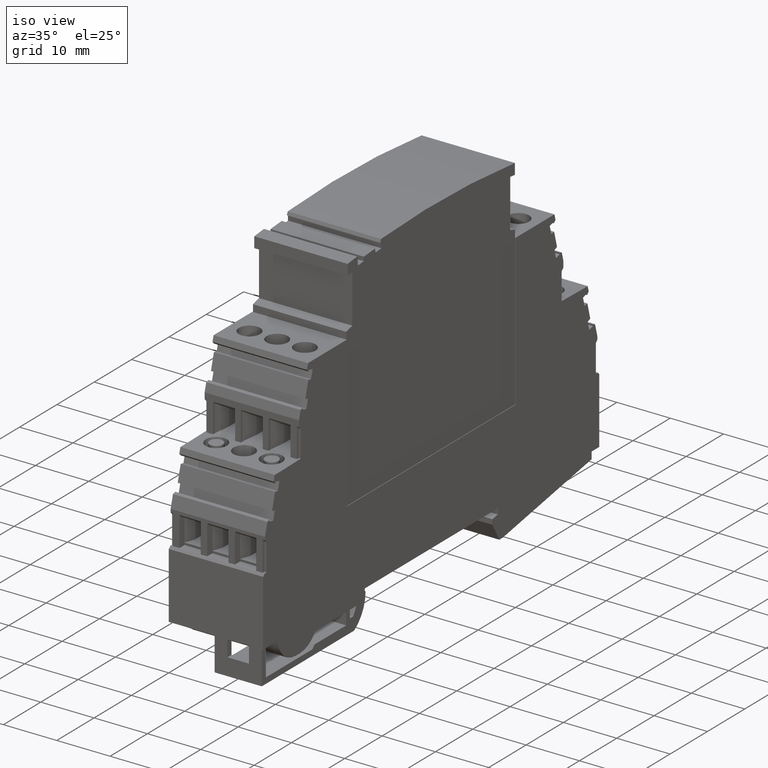
[diagram: clean part render]
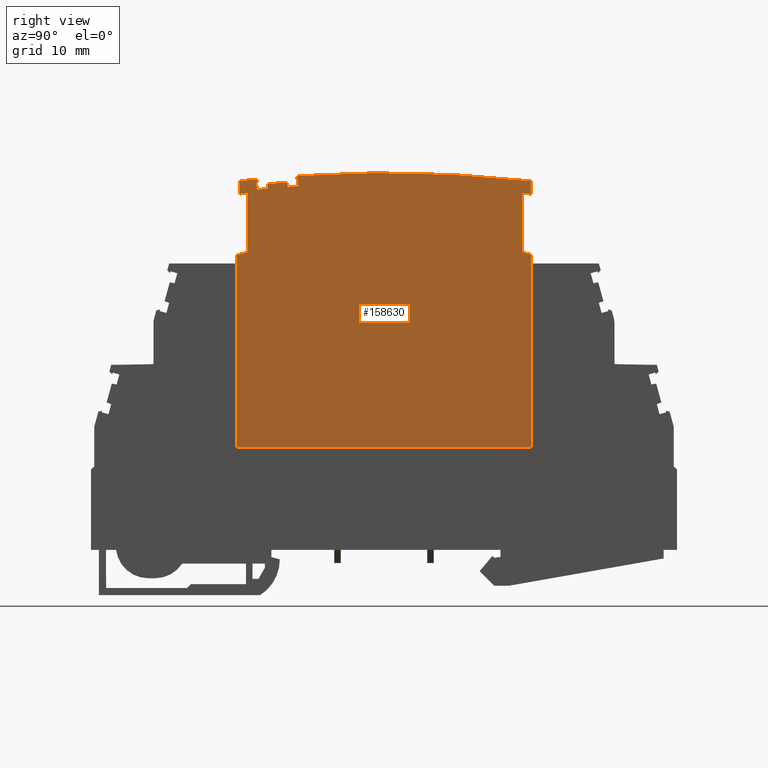
[diagram: tour spotlight — one face highlighted and labeled with its STEP entity id]
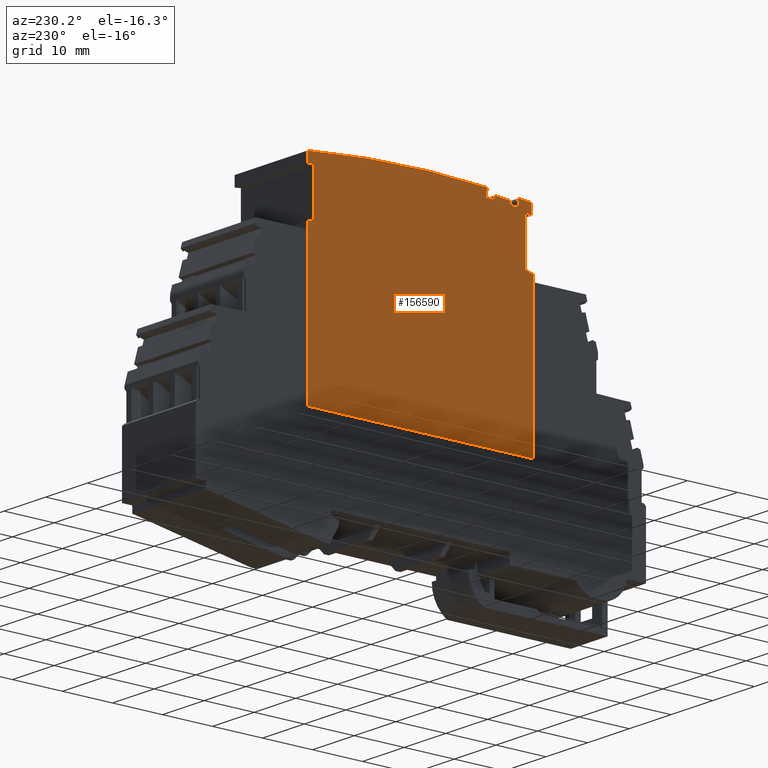
[diagram: tour spotlight — one face highlighted and labeled with its STEP entity id]
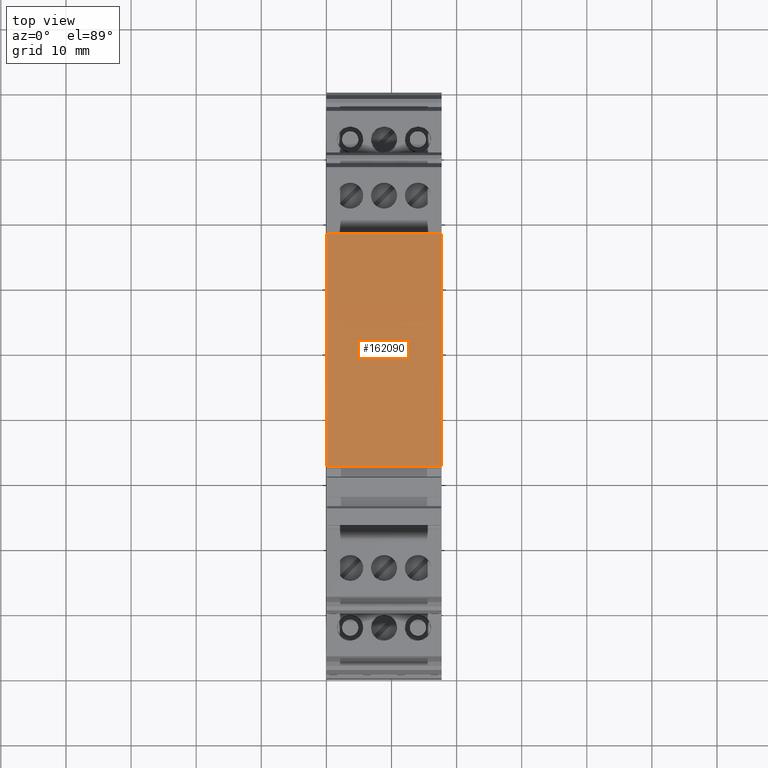
[diagram: tour spotlight — one face highlighted and labeled with its STEP entity id]
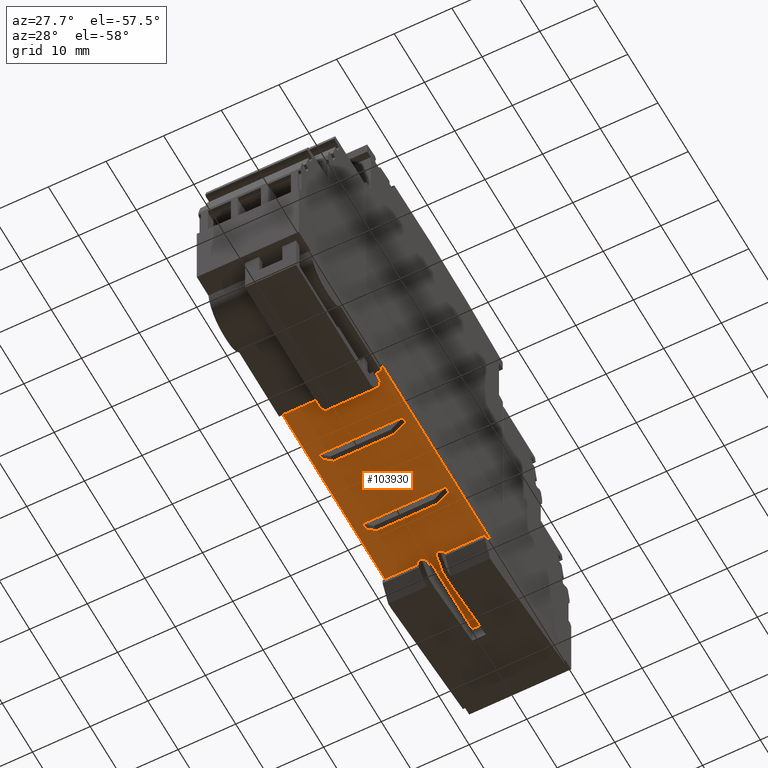
[diagram: tour spotlight — one face highlighted and labeled with its STEP entity id]
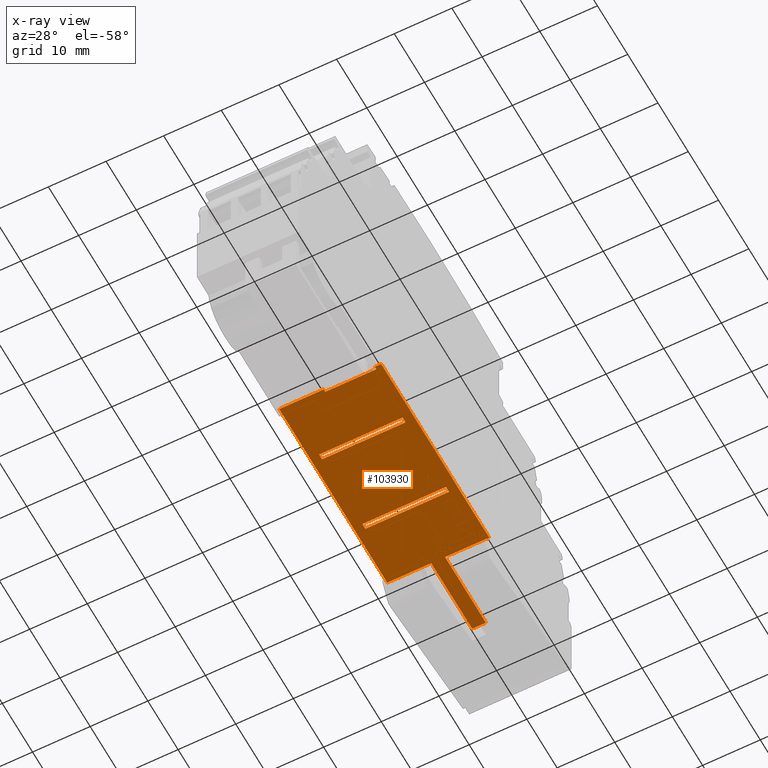
[diagram: x-ray of the same camera — body ghosted, this tour face saturated]
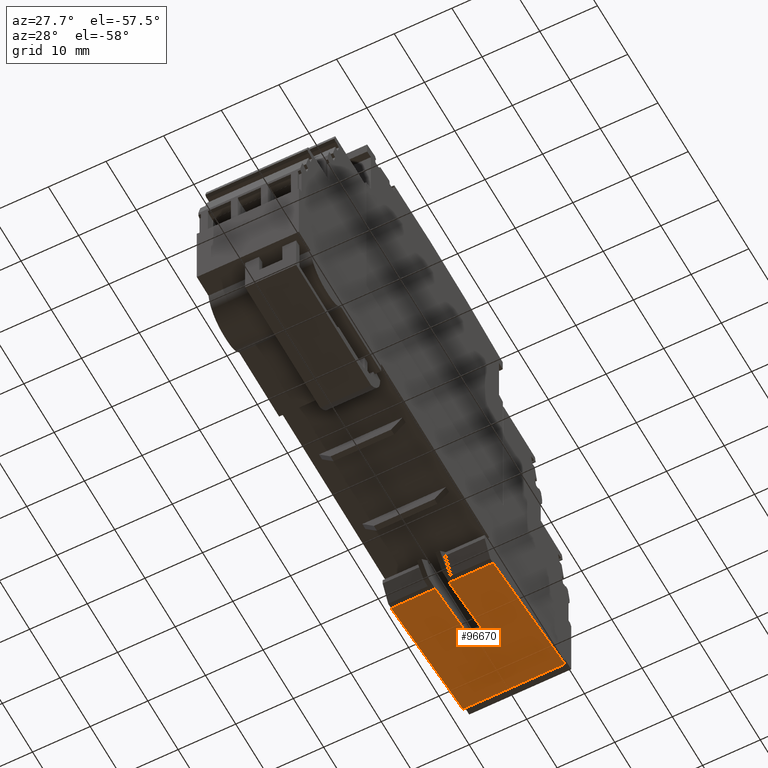
[diagram: tour spotlight — one face highlighted and labeled with its STEP entity id]
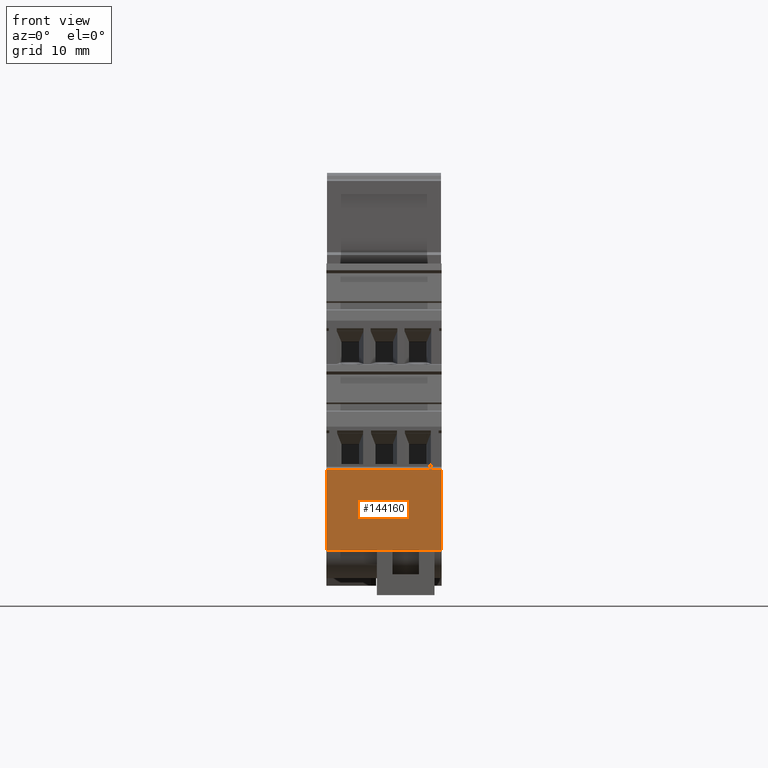
[diagram: tour spotlight — one face highlighted and labeled with its STEP entity id]
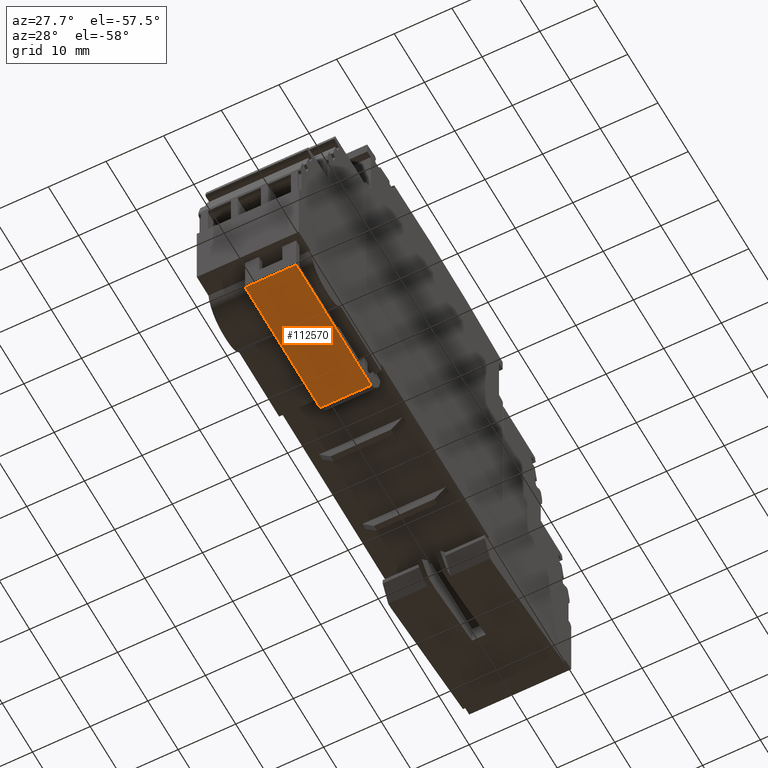
[diagram: tour spotlight — one face highlighted and labeled with its STEP entity id]
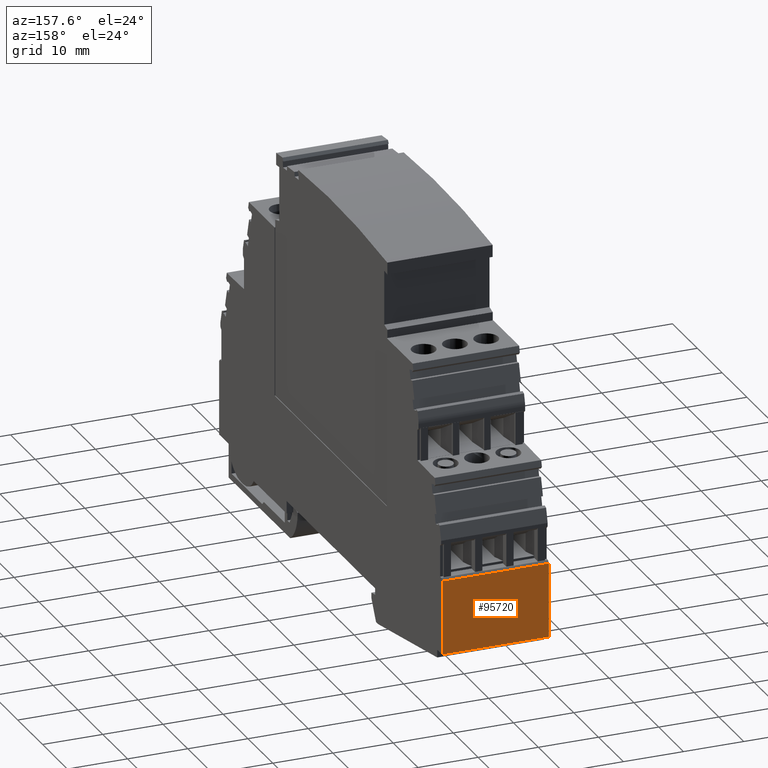
[diagram: tour spotlight — one face highlighted and labeled with its STEP entity id]
A machine part: a face-by-face anatomy tour. The part has 454 B-rep faces; the first image is the clean iso view, then the 8 largest visible faces are spotlighted one at a time (largest first), each with its STEP entity span.

Face 1 — right view, entity #158630. In plain terms, the highlighted planar face has unit normal (1, -0, 0).
Definition (entity closure, byte-faithful):
#24470=CARTESIAN_POINT('',(91.941351313916,59.0562740524438,
-49.3595517602489));
#24480=VERTEX_POINT('',#24470);
#39840=CARTESIAN_POINT('',(46.7413513139147,59.0562740524438,
-49.3595517602489));
#39850=VERTEX_POINT('',#39840);
#114750=CARTESIAN_POINT('',(129.782702627831,30.7879289771841,
-49.3595517602489));
#114760=DIRECTION('',(-1.,3.95149615359835E-16,-2.44929359829471E-16));
#114770=VECTOR('',#114760,1.);
#114780=LINE('',#114750,#114770);
#114790=CARTESIAN_POINT('',(91.9413513139153,30.7879289771841,
-49.3595517602489));
#114800=VERTEX_POINT('',#114790);
#114810=CARTESIAN_POINT('',(46.7413513139147,30.7879289771841,
-49.3595517602489));
#114820=VERTEX_POINT('',#114810);
#114830=EDGE_CURVE('',#114800,#114820,#114780,.T.);
#154090=CARTESIAN_POINT('',(91.9413513139153,-15.7,-49.3595517602489));
#154100=DIRECTION('',(-1.22315418291217E-33,-1.,-2.77555756156286E-17));
#154110=VECTOR('',#154100,1.);
#154120=LINE('',#154090,#154110);
#154130=EDGE_CURVE('',#24480,#114800,#154120,.T.);
#154470=CARTESIAN_POINT('',(46.7413513139153,-15.7,-49.3595517602489));
#154480=DIRECTION('',(1.22315418291217E-33,1.,2.77555756156286E-17));
#154490=VECTOR('',#154480,1.);
#154500=LINE('',#154470,#154490);
#154510=EDGE_CURVE('',#114820,#39850,#154500,.T.);
#156670=CARTESIAN_POINT('',(87.3246870342091,44.7629289771836,
-49.3595517602489));
#156680=DIRECTION('',(2.44929359829471E-16,2.77555756156286E-17,-1.));
#156690=DIRECTION('',(-1.,3.95149615359835E-16,-2.44929359829471E-16));
#156700=AXIS2_PLACEMENT_3D('',#156670,#156680,#156690);
#156710=PLANE('',#156700);
#156720=CARTESIAN_POINT('',(28.1055349542082,-15.7,-49.359551760249));
#156730=DIRECTION('',(0.570304385120161,0.821433447281467,
1.25353295208968E-16));
#156740=VECTOR('',#156730,1.);
#156750=LINE('',#156720,#156740);
#156760=CARTESIAN_POINT('',(88.6446068316195,71.4969772720664,
-49.3595517602489));
#156770=VERTEX_POINT('',#156760);
#156780=CARTESIAN_POINT('',(88.996123659241,72.0032817772118,
-49.3595517602489));
#156790=VERTEX_POINT('',#156780);
#156800=EDGE_CURVE('',#156770,#156790,#156750,.T.);
#156810=ORIENTED_EDGE('',*,*,#156800,.T.);
#156820=CARTESIAN_POINT('',(129.782702627831,68.0631542734316,
-49.3595517602489));
#156830=DIRECTION('',(-0.996534425423477,0.0831813617699367,
-2.46940359703831E-16));
#156840=VECTOR('',#156830,1.);
#156850=LINE('',#156820,#156840);
#156860=CARTESIAN_POINT('',(88.9159707503849,71.4743263533206,
-49.3595517602489));
#156870=VERTEX_POINT('',#156860);
#156880=EDGE_CURVE('',#156870,#156770,#156850,.T.);
#156890=ORIENTED_EDGE('',*,*,#156880,.T.);
#156900=CARTESIAN_POINT('',(81.6394743325323,-15.7,-49.359551760249));
#156910=DIRECTION('',(0.0831813617632678,0.996534425424033,
4.48812483627465E-17));
#156920=VECTOR('',#156910,1.);
#156930=LINE('',#156900,#156920);
#156940=CARTESIAN_POINT('',(88.8269666932981,70.4080345181164,
-49.359551760249));
#156950=VERTEX_POINT('',#156940);
#156960=EDGE_CURVE('',#156950,#156870,#156930,.T.);
#156970=ORIENTED_EDGE('',*,*,#156960,.T.);
#156980=CARTESIAN_POINT('',(129.782702627831,66.9894332132979,
-49.3595517602489));
#156990=DIRECTION('',(0.996534425424034,-0.0831813617632646,
2.46940359703899E-16));
#157000=VECTOR('',#156990,1.);
#157010=LINE('',#156980,#157000);
#157020=CARTESIAN_POINT('',(87.2356173098092,70.5408654624196,
-49.3595517602489));
#157030=VERTEX_POINT('',#157020);
#157040=EDGE_CURVE('',#157030,#156950,#157010,.T.);
#157050=ORIENTED_EDGE('',*,*,#157040,.T.);
#157060=CARTESIAN_POINT('',(87.5796233416669,-15.7,-49.3595517602489));
#157070=DIRECTION('',(0.003988866452728,-0.999992044440566,
-2.68333994932788E-17));
#157080=VECTOR('',#157070,1.);
#157090=LINE('',#157060,#157080);
#157100=CARTESIAN_POINT('',(87.2326142323533,71.2937243511158,
-49.3595517602489));
#157110=VERTEX_POINT('',#157100);
#157120=EDGE_CURVE('',#157110,#157030,#157090,.T.);
#157130=ORIENTED_EDGE('',*,*,#157120,.T.);
#157140=CARTESIAN_POINT('',(129.782702627831,67.7420414332121,
-49.3595517602489));
#157150=DIRECTION('',(0.996534425424037,-0.0831813617632297,
2.46940359703899E-16));
#157160=VECTOR('',#157150,1.);
#157170=LINE('',#157140,#157160);
#157180=CARTESIAN_POINT('',(84.2430109560811,71.5432684364055,
-49.3595517602489));
#157190=VERTEX_POINT('',#157180);
#157200=EDGE_CURVE('',#157190,#157110,#157170,.T.);
#157210=ORIENTED_EDGE('',*,*,#157200,.T.);
#157220=CARTESIAN_POINT('',(69.2182410383657,-15.7,-49.3595517602489));
#157230=DIRECTION('',(0.169718529589978,0.985492577706101,
6.24178888252795E-17));
#157240=VECTOR('',#157230,1.);
#157250=LINE('',#157220,#157240);
#157260=CARTESIAN_POINT('',(84.1152358359803,70.8013256869659,
-49.3595517602489));
#157270=VERTEX_POINT('',#157260);
#157280=EDGE_CURVE('',#157270,#157190,#157250,.T.);
#157290=ORIENTED_EDGE('',*,*,#157280,.T.);
#157300=CARTESIAN_POINT('',(129.782702627831,66.9894332132977,
-49.3595517602489));
#157310=DIRECTION('',(0.996534425424033,-0.0831813617632702,
2.46940359703899E-16));
#157320=VECTOR('',#157310,1.);
#157330=LINE('',#157300,#157320);
#157340=CARTESIAN_POINT('',(82.5238864524912,70.9341566312691,
-49.3595517602489));
#157350=VERTEX_POINT('',#157340);
#157360=EDGE_CURVE('',#157350,#157270,#157330,.T.);
#157370=ORIENTED_EDGE('',*,*,#157360,.T.);
#157380=CARTESIAN_POINT('',(75.2924783446016,-15.7,-49.3595517602489));
#157390=DIRECTION('',(-0.0831813617632822,-0.996534425424032,
-4.48812483627483E-17));
#157400=VECTOR('',#157390,1.);
#157410=LINE('',#157380,#157400);
#157420=CARTESIAN_POINT('',(82.612890509578,72.0004484664729,
-49.3595517602489));
#157430=VERTEX_POINT('',#157420);
#157440=EDGE_CURVE('',#157430,#157350,#157410,.T.);
#157450=ORIENTED_EDGE('',*,*,#157440,.T.);
#157460=CARTESIAN_POINT('',(129.782702627831,68.063154273595,
-49.3595517602489));
#157470=DIRECTION('',(-0.996534425423838,0.0831813617656091,
-2.46940359703875E-16));
#157480=VECTOR('',#157470,1.);
#157490=LINE('',#157460,#157480);
#157500=CARTESIAN_POINT('',(82.8842544283448,71.9777975477277,
-49.3595517602489));
#157510=VERTEX_POINT('',#157500);
#157520=EDGE_CURVE('',#157510,#157430,#157490,.T.);
#157530=ORIENTED_EDGE('',*,*,#157520,.T.);
#157540=CARTESIAN_POINT('',(124.195662122346,-15.7,-49.3595517602489));
#157550=DIRECTION('',(0.426230040303356,-0.904614809044711,
1.07709276687053E-16));
#157560=VECTOR('',#157550,1.);
#157570=LINE('',#157540,#157560);
#157580=CARTESIAN_POINT('',(82.6215402786483,72.5353723028808,
-49.3595517602489));
#157590=VERTEX_POINT('',#157580);
#157600=EDGE_CURVE('',#157590,#157510,#157570,.T.);
#157610=ORIENTED_EDGE('',*,*,#157600,.T.);
#157620=CARTESIAN_POINT('',(69.1746870342081,-127.012071022819,
-49.3595517602489));
#157630=DIRECTION('',(0.,0.,1.));
#157640=DIRECTION('',(1.,-3.95149615359835E-16,0.));
#157650=AXIS2_PLACEMENT_3D('',#157620,#157630,#157640);
#157660=CIRCLE('',#157650,200.000000000003);
#157670=CARTESIAN_POINT('',(46.7746870342085,71.7295703108504,
-49.3595517602489));
#157680=VERTEX_POINT('',#157670);
#157690=EDGE_CURVE('',#157590,#157680,#157660,.T.);
#157700=ORIENTED_EDGE('',*,*,#157690,.F.);
#157710=CARTESIAN_POINT('',(46.7746870342066,-15.7,-49.3595517602489));
#157720=DIRECTION('',(2.15849048544495E-14,1.,2.77555756156363E-17));
#157730=VECTOR('',#157720,1.);
#157740=LINE('',#157710,#157730);
#157750=CARTESIAN_POINT('',(46.7746870342085,69.7167779038214,
-49.3595517602489));
#157760=VERTEX_POINT('',#157750);
#157770=EDGE_CURVE('',#157760,#157680,#157740,.T.);
#157780=ORIENTED_EDGE('',*,*,#157770,.T.);
#157790=CARTESIAN_POINT('',(69.1746870342056,-127.01207102282,
-49.3595517602489));
#157800=DIRECTION('',(0.,0.,1.));
#157810=DIRECTION('',(1.,-3.95149615359835E-16,0.));
#157820=AXIS2_PLACEMENT_3D('',#157790,#157800,#157810);
#157830=CIRCLE('',#157820,198.000000000003);
#157840=CARTESIAN_POINT('',(48.0256181556051,69.8551859946164,
-49.3595517602489));
#157850=VERTEX_POINT('',#157840);
#157860=EDGE_CURVE('',#157850,#157760,#157830,.T.);
#157870=ORIENTED_EDGE('',*,*,#157860,.T.);
#157880=CARTESIAN_POINT('',(48.0256181556048,-15.7,-49.3595517602489));
#157890=DIRECTION('',(3.52944662482313E-15,1.,2.77555756156297E-17));
#157900=VECTOR('',#157890,1.);
#157910=LINE('',#157880,#157900);
#157920=CARTESIAN_POINT('',(48.025618155605,60.787216576086,
-49.359551760249));
#157930=VERTEX_POINT('',#157920);
#157940=EDGE_CURVE('',#157930,#157850,#157910,.T.);
#157950=ORIENTED_EDGE('',*,*,#157940,.T.);
#157960=CARTESIAN_POINT('',(129.782702627831,82.6939613359419,
-49.3595517602489));
#157970=DIRECTION('',(0.965925826289069,0.25881904510252,
2.15436311792568E-16));
#157980=VECTOR('',#157970,1.);
#157990=LINE('',#157960,#157980);
#158000=CARTESIAN_POINT('',(46.7413513139147,60.443098312989,
-49.359551760249));
#158010=VERTEX_POINT('',#158000);
#158020=EDGE_CURVE('',#158010,#157930,#157990,.T.);
#158030=ORIENTED_EDGE('',*,*,#158020,.T.);
#158040=CARTESIAN_POINT('',(46.7413513139153,-15.7,-49.3595517602489));
#158050=DIRECTION('',(3.95149615359835E-16,1.,2.77555756156287E-17));
#158060=VECTOR('',#158050,1.);
#158070=LINE('',#158040,#158060);
#158080=EDGE_CURVE('',#39850,#158010,#158070,.T.);
#158090=ORIENTED_EDGE('',*,*,#158080,.T.);
#158100=ORIENTED_EDGE('',*,*,#154510,.T.);
#158110=ORIENTED_EDGE('',*,*,#114830,.T.);
#158120=ORIENTED_EDGE('',*,*,#154130,.T.);
#158130=CARTESIAN_POINT('',(91.941351313916,-15.7,-49.3595517602489));
#158140=DIRECTION('',(-4.30464209393175E-33,-1.,-2.77555756156286E-17));
#158150=VECTOR('',#158140,1.);
#158160=LINE('',#158130,#158150);
#158170=CARTESIAN_POINT('',(91.941351313916,60.3537831946802,
-49.3595517602489));
#158180=VERTEX_POINT('',#158170);
#158190=EDGE_CURVE('',#158180,#24480,#158160,.T.);
#158200=ORIENTED_EDGE('',*,*,#158190,.T.);
#158210=CARTESIAN_POINT('',(129.782702627831,50.2142236696143,
-49.3595517602489));
#158220=DIRECTION('',(0.965925826289068,-0.258819045102521,
2.29314099600383E-16));
#158230=VECTOR('',#158220,1.);
#158240=LINE('',#158210,#158230);
#158250=CARTESIAN_POINT('',(90.3237679128138,60.7872133606955,
-49.3595517602489));
#158260=VERTEX_POINT('',#158250);
#158270=EDGE_CURVE('',#158260,#158180,#158240,.T.);
#158280=ORIENTED_EDGE('',*,*,#158270,.T.);
#158290=CARTESIAN_POINT('',(90.3237679128137,-15.7,-49.3595517602489));
#158300=DIRECTION('',(-3.95149615359835E-16,-1.,-2.77555756156287E-17));
#158310=VECTOR('',#158300,1.);
#158320=LINE('',#158290,#158310);
#158330=CARTESIAN_POINT('',(90.3237679128138,69.8551847054789,
-49.3595517602489));
#158340=VERTEX_POINT('',#158330);
#158350=EDGE_CURVE('',#158340,#158260,#158320,.T.);
#158360=ORIENTED_EDGE('',*,*,#158350,.T.);
#158370=CARTESIAN_POINT('',(69.1746870342081,-127.012071022819,
-49.3595517602489));
#158380=DIRECTION('',(0.,0.,-1.));
#158390=DIRECTION('',(-1.,3.95149615359835E-16,0.));
#158400=AXIS2_PLACEMENT_3D('',#158370,#158380,#158390);
#158410=CIRCLE('',#158400,198.000000000003);
#158420=CARTESIAN_POINT('',(91.5746870342086,69.7167779038213,
-49.3595517602489));
#158430=VERTEX_POINT('',#158420);
#158440=EDGE_CURVE('',#158340,#158430,#158410,.T.);
#158450=ORIENTED_EDGE('',*,*,#158440,.F.);
#158460=CARTESIAN_POINT('',(91.5746870342109,-15.7,-49.3595517602489));
#158470=DIRECTION('',(2.78578573700914E-14,-1.,-2.77555756156208E-17));
#158480=VECTOR('',#158470,1.);
#158490=LINE('',#158460,#158480);
#158500=CARTESIAN_POINT('',(91.5746870342085,71.7295703108504,
-49.3595517602489));
#158510=VERTEX_POINT('',#158500);
#158520=EDGE_CURVE('',#158510,#158430,#158490,.T.);
#158530=ORIENTED_EDGE('',*,*,#158520,.T.);
#158540=CARTESIAN_POINT('',(69.1746870342081,-127.012071022819,
-49.3595517602489));
#158550=DIRECTION('',(0.,0.,1.));
#158560=DIRECTION('',(1.,-3.95149615359835E-16,0.));
#158570=AXIS2_PLACEMENT_3D('',#158540,#158550,#158560);
#158580=CIRCLE('',#158570,200.000000000003);
#158590=EDGE_CURVE('',#158510,#156790,#158580,.T.);
#158600=ORIENTED_EDGE('',*,*,#158590,.F.);
#158610=EDGE_LOOP('',(#158600,#158530,#158450,#158360,#158280,#158200,
#158120,#158110,#158100,#158090,#158030,#157950,#157870,#157780,#157700,
#157610,#157530,#157450,#157370,#157290,#157210,#157130,#157050,#156970,
#156890,#156810));
#158620=FACE_OUTER_BOUND('',#158610,.T.);
#158630=ADVANCED_FACE('',(#158620),#156710,.T.);

Face 2 — auxiliary view, entity #156590. In plain terms, the highlighted planar face has unit normal (1, -0, 0).
Definition (entity closure, byte-faithful):
#24390=CARTESIAN_POINT('',(91.941351313916,59.0562740524438,
-31.8595517602489));
#24400=VERTEX_POINT('',#24390);
#31160=CARTESIAN_POINT('',(91.941351313916,30.7879289771841,
-31.8595517602489));
#31170=VERTEX_POINT('',#31160);
#31200=CARTESIAN_POINT('',(91.9413513139153,-15.7,-31.8595517602489));
#31210=DIRECTION('',(-1.22315418291217E-33,-1.,-2.77555756156286E-17));
#31220=VECTOR('',#31210,1.);
#31230=LINE('',#31200,#31220);
#31240=EDGE_CURVE('',#24400,#31170,#31230,.T.);
#39820=CARTESIAN_POINT('',(46.7413513139147,59.0562740524438,
-31.8595517602489));
#39830=VERTEX_POINT('',#39820);
#115110=CARTESIAN_POINT('',(46.7413513139153,-15.7,-31.8595517602489));
#115120=DIRECTION('',(1.22315418291217E-33,1.,2.77555756156286E-17));
#115130=VECTOR('',#115120,1.);
#115140=LINE('',#115110,#115130);
#115150=CARTESIAN_POINT('',(46.7413513139147,30.7879289771841,
-31.8595517602489));
#115160=VERTEX_POINT('',#115150);
#115170=EDGE_CURVE('',#115160,#39830,#115140,.T.);
#154280=CARTESIAN_POINT('',(129.782702627831,30.7879289771841,
-31.8595517602489));
#154290=DIRECTION('',(-1.,3.95149615359835E-16,-2.44929359829471E-16));
#154300=VECTOR('',#154290,1.);
#154310=LINE('',#154280,#154300);
#154320=EDGE_CURVE('',#31170,#115160,#154310,.T.);
#154630=CARTESIAN_POINT('',(87.3246870342091,44.7629289771836,
-31.8595517602489));
#154640=DIRECTION('',(2.44929359829471E-16,2.77555756156286E-17,-1.));
#154650=DIRECTION('',(-1.,3.95149615359835E-16,-2.44929359829471E-16));
#154660=AXIS2_PLACEMENT_3D('',#154630,#154640,#154650);
#154670=PLANE('',#154660);
#154680=CARTESIAN_POINT('',(69.1746870342081,-127.012071022819,
-31.8595517602489));
#154690=DIRECTION('',(0.,0.,1.));
#154700=DIRECTION('',(1.,-3.95149615359835E-16,0.));
#154710=AXIS2_PLACEMENT_3D('',#154680,#154690,#154700);
#154720=CIRCLE('',#154710,200.000000000003);
#154730=CARTESIAN_POINT('',(91.5746870342085,71.7295703108504,
-31.8595517602489));
#154740=VERTEX_POINT('',#154730);
#154750=CARTESIAN_POINT('',(88.996123659241,72.0032817772119,
-31.8595517602489));
#154760=VERTEX_POINT('',#154750);
#154770=EDGE_CURVE('',#154740,#154760,#154720,.T.);
#154780=ORIENTED_EDGE('',*,*,#154770,.T.);
#154790=CARTESIAN_POINT('',(91.5746870342109,-15.7,-31.8595517602489));
#154800=DIRECTION('',(2.78578573700914E-14,-1.,-2.77555756156208E-17));
#154810=VECTOR('',#154800,1.);
#154820=LINE('',#154790,#154810);
#154830=CARTESIAN_POINT('',(91.5746870342086,69.7167779038213,
-31.8595517602489));
#154840=VERTEX_POINT('',#154830);
#154850=EDGE_CURVE('',#154740,#154840,#154820,.T.);
#154860=ORIENTED_EDGE('',*,*,#154850,.F.);
#154870=CARTESIAN_POINT('',(69.1746870342081,-127.012071022819,
-31.8595517602489));
#154880=DIRECTION('',(0.,0.,-1.));
#154890=DIRECTION('',(-1.,3.95149615359835E-16,0.));
#154900=AXIS2_PLACEMENT_3D('',#154870,#154880,#154890);
#154910=CIRCLE('',#154900,198.000000000003);
#154920=CARTESIAN_POINT('',(90.3237679128138,69.8551847054789,
-31.8595517602489));
#154930=VERTEX_POINT('',#154920);
#154940=EDGE_CURVE('',#154930,#154840,#154910,.T.);
#154950=ORIENTED_EDGE('',*,*,#154940,.T.);
#154960=CARTESIAN_POINT('',(90.3237679128137,-15.7,-31.8595517602489));
#154970=DIRECTION('',(-3.95149615359835E-16,-1.,-2.77555756156287E-17));
#154980=VECTOR('',#154970,1.);
#154990=LINE('',#154960,#154980);
#155000=CARTESIAN_POINT('',(90.3237679128138,60.7872133606955,
-31.8595517602489));
#155010=VERTEX_POINT('',#155000);
#155020=EDGE_CURVE('',#154930,#155010,#154990,.T.);
#155030=ORIENTED_EDGE('',*,*,#155020,.F.);
#155040=CARTESIAN_POINT('',(129.782702627831,50.2142236696143,
-31.8595517602489));
#155050=DIRECTION('',(0.965925826289068,-0.258819045102521,
2.29314099600383E-16));
#155060=VECTOR('',#155050,1.);
#155070=LINE('',#155040,#155060);
#155080=CARTESIAN_POINT('',(91.941351313916,60.3537831946802,
-31.8595517602489));
#155090=VERTEX_POINT('',#155080);
#155100=EDGE_CURVE('',#155010,#155090,#155070,.T.);
#155110=ORIENTED_EDGE('',*,*,#155100,.F.);
#155120=CARTESIAN_POINT('',(91.941351313916,-15.7,-31.8595517602489));
#155130=DIRECTION('',(-4.30464209393175E-33,-1.,-2.77555756156286E-17));
#155140=VECTOR('',#155130,1.);
#155150=LINE('',#155120,#155140);
#155160=EDGE_CURVE('',#155090,#24400,#155150,.T.);
#155170=ORIENTED_EDGE('',*,*,#155160,.F.);
#155180=ORIENTED_EDGE('',*,*,#31240,.F.);
#155190=ORIENTED_EDGE('',*,*,#154320,.F.);
#155200=ORIENTED_EDGE('',*,*,#115170,.F.);
#155210=CARTESIAN_POINT('',(46.7413513139153,-15.7,-31.8595517602489));
#155220=DIRECTION('',(3.95149615359835E-16,1.,2.77555756156287E-17));
#155230=VECTOR('',#155220,1.);
#155240=LINE('',#155210,#155230);
#155250=CARTESIAN_POINT('',(46.7413513139147,60.443098312989,
-31.8595517602489));
#155260=VERTEX_POINT('',#155250);
#155270=EDGE_CURVE('',#39830,#155260,#155240,.T.);
#155280=ORIENTED_EDGE('',*,*,#155270,.F.);
#155290=CARTESIAN_POINT('',(129.782702627831,82.6939613359419,
-31.8595517602489));
#155300=DIRECTION('',(0.965925826289069,0.25881904510252,
2.15436311792568E-16));
#155310=VECTOR('',#155300,1.);
#155320=LINE('',#155290,#155310);
#155330=CARTESIAN_POINT('',(48.025618155605,60.787216576086,
-31.8595517602489));
#155340=VERTEX_POINT('',#155330);
#155350=EDGE_CURVE('',#155260,#155340,#155320,.T.);
#155360=ORIENTED_EDGE('',*,*,#155350,.F.);
#155370=CARTESIAN_POINT('',(48.0256181556048,-15.7,-31.8595517602489));
#155380=DIRECTION('',(3.52944662482313E-15,1.,2.77555756156297E-17));
#155390=VECTOR('',#155380,1.);
#155400=LINE('',#155370,#155390);
#155410=CARTESIAN_POINT('',(48.0256181556051,69.8551859946164,
-31.8595517602489));
#155420=VERTEX_POINT('',#155410);
#155430=EDGE_CURVE('',#155340,#155420,#155400,.T.);
#155440=ORIENTED_EDGE('',*,*,#155430,.F.);
#155450=CARTESIAN_POINT('',(69.1746870342056,-127.01207102282,
-31.8595517602489));
#155460=DIRECTION('',(0.,0.,1.));
#155470=DIRECTION('',(1.,-3.95149615359835E-16,0.));
#155480=AXIS2_PLACEMENT_3D('',#155450,#155460,#155470);
#155490=CIRCLE('',#155480,198.000000000003);
#155500=CARTESIAN_POINT('',(46.7746870342085,69.7167779038214,
-31.8595517602489));
#155510=VERTEX_POINT('',#155500);
#155520=EDGE_CURVE('',#155420,#155510,#155490,.T.);
#155530=ORIENTED_EDGE('',*,*,#155520,.F.);
#155540=CARTESIAN_POINT('',(46.7746870342066,-15.7,-31.8595517602489));
#155550=DIRECTION('',(2.15849048544495E-14,1.,2.77555756156363E-17));
#155560=VECTOR('',#155550,1.);
#155570=LINE('',#155540,#155560);
#155580=CARTESIAN_POINT('',(46.7746870342085,71.7295703108504,
-31.8595517602489));
#155590=VERTEX_POINT('',#155580);
#155600=EDGE_CURVE('',#155510,#155590,#155570,.T.);
#155610=ORIENTED_EDGE('',*,*,#155600,.F.);
#155620=CARTESIAN_POINT('',(69.1746870342081,-127.012071022819,
-31.8595517602489));
#155630=DIRECTION('',(0.,0.,1.));
#155640=DIRECTION('',(1.,-3.95149615359835E-16,0.));
#155650=AXIS2_PLACEMENT_3D('',#155620,#155630,#155640);
#155660=CIRCLE('',#155650,200.000000000003);
#155670=CARTESIAN_POINT('',(82.6215402786483,72.5353723028808,
-31.8595517602489));
#155680=VERTEX_POINT('',#155670);
#155690=EDGE_CURVE('',#155680,#155590,#155660,.T.);
#155700=ORIENTED_EDGE('',*,*,#155690,.T.);
#155710=CARTESIAN_POINT('',(124.195662122346,-15.7,-31.8595517602489));
#155720=DIRECTION('',(0.426230040303356,-0.904614809044711,
1.07709276687053E-16));
#155730=VECTOR('',#155720,1.);
#155740=LINE('',#155710,#155730);
#155750=CARTESIAN_POINT('',(82.8842544283448,71.9777975477277,
-31.8595517602489));
#155760=VERTEX_POINT('',#155750);
#155770=EDGE_CURVE('',#155680,#155760,#155740,.T.);
#155780=ORIENTED_EDGE('',*,*,#155770,.F.);
#155790=CARTESIAN_POINT('',(129.782702627831,68.063154273595,
-31.8595517602489));
#155800=DIRECTION('',(-0.996534425423838,0.0831813617656091,
-2.46940359703875E-16));
#155810=VECTOR('',#155800,1.);
#155820=LINE('',#155790,#155810);
#155830=CARTESIAN_POINT('',(82.612890509578,72.000448466473,
-31.8595517602489));
#155840=VERTEX_POINT('',#155830);
#155850=EDGE_CURVE('',#155760,#155840,#155820,.T.);
#155860=ORIENTED_EDGE('',*,*,#155850,.F.);
#155870=CARTESIAN_POINT('',(75.2924783446016,-15.7,-31.8595517602489));
#155880=DIRECTION('',(-0.0831813617632822,-0.996534425424032,
-4.48812483627483E-17));
#155890=VECTOR('',#155880,1.);
#155900=LINE('',#155870,#155890);
#155910=CARTESIAN_POINT('',(82.5238864524913,70.9341566312691,
-31.8595517602489));
#155920=VERTEX_POINT('',#155910);
#155930=EDGE_CURVE('',#155840,#155920,#155900,.T.);
#155940=ORIENTED_EDGE('',*,*,#155930,.F.);
#155950=CARTESIAN_POINT('',(129.782702627831,66.9894332132977,
-31.8595517602489));
#155960=DIRECTION('',(0.996534425424033,-0.0831813617632702,
2.46940359703899E-16));
#155970=VECTOR('',#155960,1.);
#155980=LINE('',#155950,#155970);
#155990=CARTESIAN_POINT('',(84.1152358359803,70.8013256869659,
-31.8595517602489));
#156000=VERTEX_POINT('',#155990);
#156010=EDGE_CURVE('',#155920,#156000,#155980,.T.);
#156020=ORIENTED_EDGE('',*,*,#156010,.F.);
#156030=CARTESIAN_POINT('',(69.2182410383657,-15.7,-31.8595517602489));
#156040=DIRECTION('',(0.169718529589978,0.985492577706101,
6.24178888252795E-17));
#156050=VECTOR('',#156040,1.);
#156060=LINE('',#156030,#156050);
#156070=CARTESIAN_POINT('',(84.2430109560811,71.5432684364055,
-31.8595517602489));
#156080=VERTEX_POINT('',#156070);
#156090=EDGE_CURVE('',#156000,#156080,#156060,.T.);
#156100=ORIENTED_EDGE('',*,*,#156090,.F.);
#156110=CARTESIAN_POINT('',(129.782702627831,67.7420414332121,
-31.8595517602489));
#156120=DIRECTION('',(0.996534425424037,-0.0831813617632297,
2.46940359703899E-16));
#156130=VECTOR('',#156120,1.);
#156140=LINE('',#156110,#156130);
#156150=CARTESIAN_POINT('',(87.2326142323533,71.2937243511158,
-31.8595517602489));
#156160=VERTEX_POINT('',#156150);
#156170=EDGE_CURVE('',#156080,#156160,#156140,.T.);
#156180=ORIENTED_EDGE('',*,*,#156170,.F.);
#156190=CARTESIAN_POINT('',(87.5796233416669,-15.7,-31.8595517602489));
#156200=DIRECTION('',(0.003988866452728,-0.999992044440566,
-2.68333994932788E-17));
#156210=VECTOR('',#156200,1.);
#156220=LINE('',#156190,#156210);
#156230=CARTESIAN_POINT('',(87.2356173098092,70.5408654624196,
-31.8595517602489));
#156240=VERTEX_POINT('',#156230);
#156250=EDGE_CURVE('',#156160,#156240,#156220,.T.);
#156260=ORIENTED_EDGE('',*,*,#156250,.F.);
#156270=CARTESIAN_POINT('',(129.782702627831,66.9894332132979,
-31.8595517602489));
#156280=DIRECTION('',(0.996534425424034,-0.0831813617632646,
2.46940359703899E-16));
#156290=VECTOR('',#156280,1.);
#156300=LINE('',#156270,#156290);
#156310=CARTESIAN_POINT('',(88.8269666932981,70.4080345181164,
-31.859551760249));
#156320=VERTEX_POINT('',#156310);
#156330=EDGE_CURVE('',#156240,#156320,#156300,.T.);
#156340=ORIENTED_EDGE('',*,*,#156330,.F.);
#156350=CARTESIAN_POINT('',(81.6394743325323,-15.7,-31.859551760249));
#156360=DIRECTION('',(0.0831813617632678,0.996534425424033,
4.48812483627465E-17));
#156370=VECTOR('',#156360,1.);
#156380=LINE('',#156350,#156370);
#156390=CARTESIAN_POINT('',(88.9159707503849,71.4743263533206,
-31.8595517602489));
#156400=VERTEX_POINT('',#156390);
#156410=EDGE_CURVE('',#156320,#156400,#156380,.T.);
#156420=ORIENTED_EDGE('',*,*,#156410,.F.);
#156430=CARTESIAN_POINT('',(129.782702627831,68.0631542734316,
-31.8595517602489));
#156440=DIRECTION('',(-0.996534425423477,0.0831813617699367,
-2.46940359703831E-16));
#156450=VECTOR('',#156440,1.);
#156460=LINE('',#156430,#156450);
#156470=CARTESIAN_POINT('',(88.6446068316195,71.4969772720664,
-31.8595517602489));
#156480=VERTEX_POINT('',#156470);
#156490=EDGE_CURVE('',#156400,#156480,#156460,.T.);
#156500=ORIENTED_EDGE('',*,*,#156490,.F.);
#156510=CARTESIAN_POINT('',(28.1055349542082,-15.7,-31.8595517602489));
#156520=DIRECTION('',(0.570304385120161,0.821433447281467,
1.25353295208968E-16));
#156530=VECTOR('',#156520,1.);
#156540=LINE('',#156510,#156530);
#156550=EDGE_CURVE('',#156480,#154760,#156540,.T.);
#156560=ORIENTED_EDGE('',*,*,#156550,.F.);
#156570=EDGE_LOOP('',(#156560,#156500,#156420,#156340,#156260,#156180,
#156100,#156020,#155940,#155860,#155780,#155700,#155610,#155530,#155440,
#155360,#155280,#155200,#155190,#155180,#155170,#155110,#155030,#154950,
#154860,#154780));
#156580=FACE_OUTER_BOUND('',#156570,.T.);
#156590=ADVANCED_FACE('',(#156580),#154670,.F.);

Face 3 — top view, entity #162090. In plain terms, the highlighted cylindrical surface (partial cylindrical patch) has radius 200 mm, axis along (-1, 0, -0).
Definition (entity closure, byte-faithful):
#155580=CARTESIAN_POINT('',(46.7746870342085,71.7295703108504,
-31.8595517602489));
#155590=VERTEX_POINT('',#155580);
#155620=CARTESIAN_POINT('',(69.1746870342081,-127.012071022819,
-31.8595517602489));
#155630=DIRECTION('',(0.,0.,1.));
#155640=DIRECTION('',(1.,-3.95149615359835E-16,0.));
#155650=AXIS2_PLACEMENT_3D('',#155620,#155630,#155640);
#155660=CIRCLE('',#155650,200.000000000003);
#155670=CARTESIAN_POINT('',(82.6215402786483,72.5353723028808,
-31.8595517602489));
#155680=VERTEX_POINT('',#155670);
#155690=EDGE_CURVE('',#155680,#155590,#155660,.T.);
#157580=CARTESIAN_POINT('',(82.6215402786483,72.5353723028808,
-49.3595517602489));
#157590=VERTEX_POINT('',#157580);
#157620=CARTESIAN_POINT('',(69.1746870342081,-127.012071022819,
-49.3595517602489));
#157630=DIRECTION('',(0.,0.,1.));
#157640=DIRECTION('',(1.,-3.95149615359835E-16,0.));
#157650=AXIS2_PLACEMENT_3D('',#157620,#157630,#157640);
#157660=CIRCLE('',#157650,200.000000000003);
#157670=CARTESIAN_POINT('',(46.7746870342085,71.7295703108504,
-49.3595517602489));
#157680=VERTEX_POINT('',#157670);
#157690=EDGE_CURVE('',#157590,#157680,#157660,.T.);
#161770=CARTESIAN_POINT('',(82.6215402786483,72.5353723028808,
-49.3595517602489));
#161780=DIRECTION('',(-2.44929359829471E-16,-2.77555756156286E-17,1.));
#161790=VECTOR('',#161780,1.);
#161800=LINE('',#161770,#161790);
#161810=EDGE_CURVE('',#157590,#155680,#161800,.T.);
#161930=CARTESIAN_POINT('',(69.1746870342081,-127.012071022819,
-49.3595517602489));
#161940=DIRECTION('',(-2.44929359829471E-16,-2.77555756156286E-17,1.));
#161950=DIRECTION('',(1.,-3.95149615359835E-16,2.44929359829471E-16));
#161960=AXIS2_PLACEMENT_3D('',#161930,#161940,#161950);
#161970=CYLINDRICAL_SURFACE('',#161960,200.000000000003);
#161980=ORIENTED_EDGE('',*,*,#157690,.T.);
#161990=ORIENTED_EDGE('',*,*,#161810,.F.);
#162000=ORIENTED_EDGE('',*,*,#155690,.F.);
#162010=CARTESIAN_POINT('',(46.7746870342085,71.7295703108504,
-51.229554160249));
#162020=DIRECTION('',(0.,0.,1.));
#162030=VECTOR('',#162020,1.);
#162040=LINE('',#162010,#162030);
#162050=EDGE_CURVE('',#157680,#155590,#162040,.T.);
#162060=ORIENTED_EDGE('',*,*,#162050,.T.);
#162070=EDGE_LOOP('',(#162060,#162000,#161990,#161980));
#162080=FACE_OUTER_BOUND('',#162070,.T.);
#162090=ADVANCED_FACE('',(#162080),#161970,.T.);

Face 4 — auxiliary view, entity #103930. An x-ray twin of the same camera follows (body ghosted, this face saturated) — the face is partly hidden behind the body. In plain terms, the highlighted planar face has unit normal (-0, 0, 1).
Definition (entity closure, byte-faithful):
#5810=CARTESIAN_POINT('',(51.4413512606413,15.0562740524428,
-49.4595517602489));
#5820=VERTEX_POINT('',#5810);
#5850=CARTESIAN_POINT('',(129.782702574557,15.0562740524428,
-49.4595517602489));
#5860=DIRECTION('',(1.,1.20996962449382E-16,1.22464679914735E-16));
#5870=VECTOR('',#5860,1.);
#5880=LINE('',#5850,#5870);
#5890=CARTESIAN_POINT('',(87.1413512606422,15.0562740524427,
-49.4595517602489));
#5900=VERTEX_POINT('',#5890);
#5910=EDGE_CURVE('',#5820,#5900,#5880,.T.);
#15490=CARTESIAN_POINT('',(87.1413512606422,15.0562740524428,
-31.7595517602489));
#15500=VERTEX_POINT('',#15490);
#15530=CARTESIAN_POINT('',(129.782702574557,15.0562740524428,
-31.7595517602489));
#15540=DIRECTION('',(-1.,-1.20996962449382E-16,-1.22455682824757E-16));
#15550=VECTOR('',#15540,1.);
#15560=LINE('',#15530,#15550);
#15570=CARTESIAN_POINT('',(51.4413512606413,15.0562740524428,
-31.7595517602489));
#15580=VERTEX_POINT('',#15570);
#15590=EDGE_CURVE('',#15500,#15580,#15560,.T.);
#94840=CARTESIAN_POINT('',(37.9413512606413,15.0562740524428,
-41.8095517602489));
#94850=VERTEX_POINT('',#94840);
#94880=CARTESIAN_POINT('',(129.782702574557,15.0562740524428,
-41.8095517602489));
#94890=DIRECTION('',(1.,1.20996962449382E-16,1.22455682824757E-16));
#94900=VECTOR('',#94890,1.);
#94910=LINE('',#94880,#94900);
#94920=CARTESIAN_POINT('',(51.4413512606413,15.0562740524428,
-41.8095517602489));
#94930=VERTEX_POINT('',#94920);
#94940=EDGE_CURVE('',#94850,#94930,#94910,.T.);
#96840=CARTESIAN_POINT('',(37.9413512606413,15.0562740524428,
-39.4095517602489));
#96850=VERTEX_POINT('',#96840);
#96880=CARTESIAN_POINT('',(37.9413512606413,15.0562740524428,
-83.0095517603414));
#96890=DIRECTION('',(1.22455682824757E-16,7.51478429024852E-19,-1.));
#96900=VECTOR('',#96890,1.);
#96910=LINE('',#96880,#96900);
#96920=EDGE_CURVE('',#96850,#94850,#96910,.T.);
#98650=CARTESIAN_POINT('',(51.4413512606413,15.0562740524428,
-83.0095517603414));
#98660=DIRECTION('',(0.,-7.51478429024816E-19,1.));
#98670=VECTOR('',#98660,1.);
#98680=LINE('',#98650,#98670);
#98690=EDGE_CURVE('',#5820,#94930,#98680,.T.);
#100140=CARTESIAN_POINT('',(87.1413512606422,15.0562740524428,
-48.3595517602489));
#100150=VERTEX_POINT('',#100140);
#100180=CARTESIAN_POINT('',(129.782702574557,15.0562740524428,
-48.3595517602489));
#100190=DIRECTION('',(-1.,-1.20996962449382E-16,-2.44922611715025E-16));
#100200=VECTOR('',#100190,1.);
#100210=LINE('',#100180,#100200);
#100220=CARTESIAN_POINT('',(86.6413512606413,15.0562740524428,
-48.3595517602489));
#100230=VERTEX_POINT('',#100220);
#100240=EDGE_CURVE('',#100150,#100230,#100210,.T.);
#101280=CARTESIAN_POINT('',(86.6413512606413,15.0562740524428,
-39.5095517602489));
#101290=VERTEX_POINT('',#101280);
#101320=CARTESIAN_POINT('',(-5.32740216385719E-8,15.0562740524428,
-39.5095517602489));
#101330=DIRECTION('',(1.,1.20996962449382E-16,1.22455682824757E-16));
#101340=VECTOR('',#101330,1.);
#101350=LINE('',#101320,#101340);
#101360=CARTESIAN_POINT('',(87.1413512606422,15.0562740524428,
-39.5095517602489));
#101370=VERTEX_POINT('',#101360);
#101380=EDGE_CURVE('',#101290,#101370,#101350,.T.);
#102790=CARTESIAN_POINT('',(86.9413512606413,15.0562740524428,
-31.7595517602489));
#102800=DIRECTION('',(-1.20996962449382E-16,1.,7.51478429024837E-19));
#102810=DIRECTION('',(1.22455682824757E-16,7.51478429024852E-19,-1.));
#102820=AXIS2_PLACEMENT_3D('',#102790,#102800,#102810);
#102830=PLANE('',#102820);
#102840=CARTESIAN_POINT('',(129.782702574557,15.0562740524428,
-47.859551760249));
#102850=DIRECTION('',(1.,1.20996962449382E-16,1.22455682824757E-16));
#102860=VECTOR('',#102850,1.);
#102870=LINE('',#102840,#102860);
#102880=CARTESIAN_POINT('',(61.6913512606413,15.0562740524427,
-47.859551760249));
#102890=VERTEX_POINT('',#102880);
#102900=CARTESIAN_POINT('',(62.6913512606412,15.0562740524427,
-47.859551760249));
#102910=VERTEX_POINT('',#102900);
#102920=EDGE_CURVE('',#102890,#102910,#102870,.T.);
#102930=ORIENTED_EDGE('',*,*,#102920,.F.);
#102940=CARTESIAN_POINT('',(62.6913512606413,15.0562740524428,
-83.0095517603414));
#102950=DIRECTION('',(1.22455682824757E-16,7.51478429024852E-19,-1.));
#102960=VECTOR('',#102950,1.);
#102970=LINE('',#102940,#102960);
#102980=CARTESIAN_POINT('',(62.6913512606413,15.0562740524427,
-33.3595517602488));
#102990=VERTEX_POINT('',#102980);
#103000=EDGE_CURVE('',#102990,#102910,#102970,.T.);
#103010=ORIENTED_EDGE('',*,*,#103000,.T.);
#103020=CARTESIAN_POINT('',(129.782702574557,15.0562740524428,
-33.3595517602488));
#103030=DIRECTION('',(-1.,-1.20996962449382E-16,-1.22455682824757E-16));
#103040=VECTOR('',#103030,1.);
#103050=LINE('',#103020,#103040);
#103060=CARTESIAN_POINT('',(61.6913512606413,15.0562740524427,
-33.3595517602489));
#103070=VERTEX_POINT('',#103060);
#103080=EDGE_CURVE('',#102990,#103070,#103050,.T.);
#103090=ORIENTED_EDGE('',*,*,#103080,.F.);
#103100=CARTESIAN_POINT('',(61.6913512606413,15.0562740524428,
-83.0095517603414));
#103110=DIRECTION('',(-1.22455682824757E-16,-7.51478429024852E-19,1.));
#103120=VECTOR('',#103110,1.);
#103130=LINE('',#103100,#103120);
#103140=EDGE_CURVE('',#102890,#103070,#103130,.T.);
#103150=ORIENTED_EDGE('',*,*,#103140,.T.);
#103160=EDGE_LOOP('',(#103150,#103090,#103010,#102930));
#103170=FACE_BOUND('',#103160,.T.);
#103180=CARTESIAN_POINT('',(129.782702574557,15.0562740524428,
-47.859551760249));
#103190=DIRECTION('',(1.,1.20996962449382E-16,1.22455682824757E-16));
#103200=VECTOR('',#103190,1.);
#103210=LINE('',#103180,#103200);
#103220=CARTESIAN_POINT('',(75.9913512606412,15.0562740524427,
-47.859551760249));
#103230=VERTEX_POINT('',#103220);
#103240=CARTESIAN_POINT('',(76.9913512606412,15.0562740524427,
-47.859551760249));
#103250=VERTEX_POINT('',#103240);
#103260=EDGE_CURVE('',#103230,#103250,#103210,.T.);
#103270=ORIENTED_EDGE('',*,*,#103260,.F.);
#103280=CARTESIAN_POINT('',(76.9913512606413,15.0562740524428,
-83.0095517603414));
#103290=DIRECTION('',(1.22455682824757E-16,7.51478429024852E-19,-1.));
#103300=VECTOR('',#103290,1.);
#103310=LINE('',#103280,#103300);
#103320=CARTESIAN_POINT('',(76.9913512606412,15.0562740524427,
-33.3595517602488));
#103330=VERTEX_POINT('',#103320);
#103340=EDGE_CURVE('',#103330,#103250,#103310,.T.);
#103350=ORIENTED_EDGE('',*,*,#103340,.T.);
#103360=CARTESIAN_POINT('',(129.782702574557,15.0562740524428,
-33.3595517602488));
#103370=DIRECTION('',(-1.,-1.20996962449382E-16,-1.22455682824757E-16));
#103380=VECTOR('',#103370,1.);
#103390=LINE('',#103360,#103380);
#103400=CARTESIAN_POINT('',(75.9913512606412,15.0562740524427,
-33.3595517602489));
#103410=VERTEX_POINT('',#103400);
#103420=EDGE_CURVE('',#103330,#103410,#103390,.T.);
#103430=ORIENTED_EDGE('',*,*,#103420,.F.);
#103440=CARTESIAN_POINT('',(75.9913512606413,15.0562740524428,
-83.0095517603414));
#103450=DIRECTION('',(-1.22455682824757E-16,-7.51478429024852E-19,1.));
#103460=VECTOR('',#103450,1.);
#103470=LINE('',#103440,#103460);
#103480=EDGE_CURVE('',#103230,#103410,#103470,.T.);
#103490=ORIENTED_EDGE('',*,*,#103480,.T.);
#103500=EDGE_LOOP('',(#103490,#103430,#103350,#103270));
#103510=FACE_BOUND('',#103500,.T.);
#103520=ORIENTED_EDGE('',*,*,#94940,.T.);
#103530=ORIENTED_EDGE('',*,*,#96920,.T.);
#103540=CARTESIAN_POINT('',(129.782702574557,15.0562740524428,
-39.4095517602489));
#103550=DIRECTION('',(-1.,-1.20996962449382E-16,-1.22455682824757E-16));
#103560=VECTOR('',#103550,1.);
#103570=LINE('',#103540,#103560);
#103580=CARTESIAN_POINT('',(51.4413512606413,15.0562740524428,
-39.4095517602489));
#103590=VERTEX_POINT('',#103580);
#103600=EDGE_CURVE('',#103590,#96850,#103570,.T.);
#103610=ORIENTED_EDGE('',*,*,#103600,.T.);
#103620=CARTESIAN_POINT('',(51.4413512606413,15.0562740524428,
-83.0095517603414));
#103630=DIRECTION('',(0.,-7.51478429024816E-19,1.));
#103640=VECTOR('',#103630,1.);
#103650=LINE('',#103620,#103640);
#103660=EDGE_CURVE('',#103590,#15580,#103650,.T.);
#103670=ORIENTED_EDGE('',*,*,#103660,.F.);
#103680=ORIENTED_EDGE('',*,*,#15590,.T.);
#103690=CARTESIAN_POINT('',(87.1413512606422,15.0562740524428,
1.79044823984347));
#103700=DIRECTION('',(1.22455682824757E-16,-2.60974393670053E-32,-1.));
#103710=VECTOR('',#103700,1.);
#103720=LINE('',#103690,#103710);
#103730=EDGE_CURVE('',#15500,#101370,#103720,.T.);
#103740=ORIENTED_EDGE('',*,*,#103730,.F.);
#103750=ORIENTED_EDGE('',*,*,#101380,.T.);
#103760=CARTESIAN_POINT('',(86.6413512606413,15.0562740524428,
-83.0095517603414));
#103770=DIRECTION('',(0.,-7.51478429024816E-19,1.));
#103780=VECTOR('',#103770,1.);
#103790=LINE('',#103760,#103780);
#103800=EDGE_CURVE('',#100230,#101290,#103790,.T.);
#103810=ORIENTED_EDGE('',*,*,#103800,.T.);
#103820=ORIENTED_EDGE('',*,*,#100240,.T.);
#103830=CARTESIAN_POINT('',(87.1413512606422,15.0562740524428,
-83.0095517603414));
#103840=DIRECTION('',(-1.22464679914735E-16,-7.51478429024852E-19,1.));
#103850=VECTOR('',#103840,1.);
#103860=LINE('',#103830,#103850);
#103870=EDGE_CURVE('',#5900,#100150,#103860,.T.);
#103880=ORIENTED_EDGE('',*,*,#103870,.T.);
#103890=ORIENTED_EDGE('',*,*,#5910,.T.);
#103900=ORIENTED_EDGE('',*,*,#98690,.F.);
#103910=EDGE_LOOP('',(#103900,#103890,#103880,#103820,#103810,#103750,
#103740,#103680,#103670,#103610,#103530,#103520));
#103920=FACE_OUTER_BOUND('',#103910,.T.);
#103930=ADVANCED_FACE('',(#103170,#103510,#103920),#102830,.F.);

Face 5 — auxiliary view, entity #96670. In plain terms, the highlighted planar face has unit normal (-0, -0.1736, 0.9848).
Definition (entity closure, byte-faithful):
#5250=CARTESIAN_POINT('',(26.3913512606413,13.7452605082469,
-49.459551760249));
#5260=VERTEX_POINT('',#5250);
#5290=CARTESIAN_POINT('',(129.782702574557,-4.48542430030398,
-49.4595517602489));
#5300=DIRECTION('',(0.984807753012208,-0.17364817766693,
1.2060416625019E-16));
#5310=VECTOR('',#5300,1.);
#5320=LINE('',#5290,#5310);
#5330=CARTESIAN_POINT('',(50.1482739900682,9.55627405244274,
-49.4595517602489));
#5340=VERTEX_POINT('',#5330);
#5350=EDGE_CURVE('',#5260,#5340,#5320,.T.);
#16050=CARTESIAN_POINT('',(50.1482739900682,9.55627405244274,
-31.7595517602489));
#16060=VERTEX_POINT('',#16050);
#16090=CARTESIAN_POINT('',(129.782702574557,-4.48542430030398,
-31.7595517602489));
#16100=DIRECTION('',(-0.984807753012208,0.17364817766693,
-1.2060416625019E-16));
#16110=VECTOR('',#16100,1.);
#16120=LINE('',#16090,#16110);
#16130=CARTESIAN_POINT('',(26.3913512606413,13.7452605082469,
-31.759551760249));
#16140=VERTEX_POINT('',#16130);
#16150=EDGE_CURVE('',#16060,#16140,#16120,.T.);
#94700=CARTESIAN_POINT('',(129.782702574557,-4.48542430030398,
-41.8095517602489));
#94710=DIRECTION('',(0.984807753012208,-0.17364817766693,
1.2060416625019E-16));
#94720=VECTOR('',#94710,1.);
#94730=LINE('',#94700,#94720);
#94740=CARTESIAN_POINT('',(37.9413512606413,11.7086838810641,
-41.8095517602489));
#94750=VERTEX_POINT('',#94740);
#94760=CARTESIAN_POINT('',(50.1482739900682,9.55627405244274,
-41.8095517602489));
#94770=VERTEX_POINT('',#94760);
#94780=EDGE_CURVE('',#94750,#94770,#94730,.T.);
#96090=CARTESIAN_POINT('',(26.3913512606413,13.7452605082469,
-83.0095517603414));
#96100=DIRECTION('',(0.,-7.5147842902485E-19,1.));
#96110=VECTOR('',#96100,1.);
#96120=LINE('',#96090,#96110);
#96130=EDGE_CURVE('',#5260,#16140,#96120,.T.);
#96280=CARTESIAN_POINT('',(49.6221592571033,9.64904227481269,
-31.7595517602489));
#96290=DIRECTION('',(0.17364817766693,0.984807753012208,
7.40061783125101E-19));
#96300=DIRECTION('',(0.984807753012208,-0.17364817766693,
1.20595305846224E-16));
#96310=AXIS2_PLACEMENT_3D('',#96280,#96290,#96300);
#96320=PLANE('',#96310);
#96330=CARTESIAN_POINT('',(50.1482739900682,9.55627405244274,
-83.0095517603414));
#96340=DIRECTION('',(4.26184595236367E-18,-3.77093609555549E-32,-1.));
#96350=VECTOR('',#96340,1.);
#96360=LINE('',#96330,#96350);
#96370=EDGE_CURVE('',#94770,#5340,#96360,.T.);
#96380=ORIENTED_EDGE('',*,*,#96370,.F.);
#96390=ORIENTED_EDGE('',*,*,#5350,.T.);
#96400=ORIENTED_EDGE('',*,*,#96130,.F.);
#96410=ORIENTED_EDGE('',*,*,#16150,.T.);
#96420=CARTESIAN_POINT('',(50.1482739900682,9.55627405244274,
-83.0095517603414));
#96430=DIRECTION('',(4.26184595236367E-18,-3.77093609555549E-32,-1.));
#96440=VECTOR('',#96430,1.);
#96450=LINE('',#96420,#96440);
#96460=CARTESIAN_POINT('',(50.1482739900682,9.55627405244274,
-39.4095517602489));
#96470=VERTEX_POINT('',#96460);
#96480=EDGE_CURVE('',#16060,#96470,#96450,.T.);
#96490=ORIENTED_EDGE('',*,*,#96480,.F.);
#96500=CARTESIAN_POINT('',(129.782702574557,-4.48542430030398,
-39.4095517602489));
#96510=DIRECTION('',(-0.984807753012208,0.17364817766693,
-1.2060416625019E-16));
#96520=VECTOR('',#96510,1.);
#96530=LINE('',#96500,#96520);
#96540=CARTESIAN_POINT('',(37.9413512606413,11.7086838810641,
-39.4095517602489));
#96550=VERTEX_POINT('',#96540);
#96560=EDGE_CURVE('',#96470,#96550,#96530,.T.);
#96570=ORIENTED_EDGE('',*,*,#96560,.F.);
#96580=CARTESIAN_POINT('',(37.9413512606413,11.7086838810641,
-83.0095517603414));
#96590=DIRECTION('',(-1.22455682824757E-16,2.08407623940579E-17,1.));
#96600=VECTOR('',#96590,1.);
#96610=LINE('',#96580,#96600);
#96620=EDGE_CURVE('',#94750,#96550,#96610,.T.);
#96630=ORIENTED_EDGE('',*,*,#96620,.T.);
#96640=ORIENTED_EDGE('',*,*,#94780,.F.);
#96650=EDGE_LOOP('',(#96640,#96630,#96570,#96490,#96410,#96400,#96390,
#96380));
#96660=FACE_OUTER_BOUND('',#96650,.T.);
#96670=ADVANCED_FACE('',(#96660),#96320,.F.);

Face 6 — front view, entity #144160. In plain terms, the highlighted planar face has unit normal (0, 1, -0).
Definition (entity closure, byte-faithful):
#6630=CARTESIAN_POINT('',(114.341351239286,15.056274052443,
-49.4595517602489));
#6640=VERTEX_POINT('',#6630);
#6670=CARTESIAN_POINT('',(114.341351239286,-21.7,-49.4595517602489));
#6680=DIRECTION('',(1.20996962449382E-16,-1.,1.48178542770189E-32));
#6690=VECTOR('',#6680,1.);
#6700=LINE('',#6670,#6690);
#6710=CARTESIAN_POINT('',(114.341351239286,27.4062740737997,
-49.4595517602489));
#6720=VERTEX_POINT('',#6710);
#6730=EDGE_CURVE('',#6720,#6640,#6700,.T.);
#14150=CARTESIAN_POINT('',(114.341351239286,15.056274052443,
-31.7595517602489));
#14160=VERTEX_POINT('',#14150);
#14190=CARTESIAN_POINT('',(114.341351239286,15.056274052443,
-83.0095517603414));
#14200=DIRECTION('',(0.,7.51478429024816E-19,-1.));
#14210=VECTOR('',#14200,1.);
#14220=LINE('',#14190,#14210);
#14230=EDGE_CURVE('',#14160,#6640,#14220,.T.);
#15170=CARTESIAN_POINT('',(114.341351239286,27.4062740737997,
-31.7595517602489));
#15180=VERTEX_POINT('',#15170);
#15210=CARTESIAN_POINT('',(114.341351239286,18.519141,-31.7595517602489)
);
#15220=DIRECTION('',(-1.20996962449382E-16,1.,-4.09142050234659E-32));
#15230=VECTOR('',#15220,1.);
#15240=LINE('',#15210,#15230);
#15250=EDGE_CURVE('',#14160,#15180,#15240,.T.);
#143890=CARTESIAN_POINT('',(114.341351239286,27.4062740737997,
-83.0095517603414));
#143900=DIRECTION('',(0.,7.51478429024805E-19,-1.));
#143910=VECTOR('',#143900,1.);
#143920=LINE('',#143890,#143910);
#143930=EDGE_CURVE('',#15180,#6720,#143920,.T.);
#144050=CARTESIAN_POINT('',(114.341351239286,27.4062740737997,
-31.7595517602489));
#144060=DIRECTION('',(-1.,-1.20996962449382E-16,4.95049452887063E-48));
#144070=DIRECTION('',(0.,4.09142050234659E-32,1.));
#144080=AXIS2_PLACEMENT_3D('',#144050,#144060,#144070);
#144090=PLANE('',#144080);
#144100=ORIENTED_EDGE('',*,*,#15250,.F.);
#144110=ORIENTED_EDGE('',*,*,#143930,.F.);
#144120=ORIENTED_EDGE('',*,*,#6730,.F.);
#144130=ORIENTED_EDGE('',*,*,#14230,.T.);
#144140=EDGE_LOOP('',(#144130,#144120,#144110,#144100));
#144150=FACE_OUTER_BOUND('',#144140,.T.);
#144160=ADVANCED_FACE('',(#144150),#144090,.F.);

Face 7 — auxiliary view, entity #112570. In plain terms, the highlighted planar face has unit normal (-0, 0, 1).
Definition (entity closure, byte-faithful):
#11980=CARTESIAN_POINT('',(113.141351260642,8.1062740524428,
-39.5095517602489));
#11990=VERTEX_POINT('',#11980);
#12490=CARTESIAN_POINT('',(113.141351260642,8.1062740524428,
-48.3595517602489));
#12500=VERTEX_POINT('',#12490);
#12530=CARTESIAN_POINT('',(113.141351260642,8.1062740524428,
-83.0095517603414));
#12540=DIRECTION('',(0.,-7.51478429024841E-19,1.));
#12550=VECTOR('',#12540,1.);
#12560=LINE('',#12530,#12550);
#12570=EDGE_CURVE('',#12500,#11990,#12560,.T.);
#100470=CARTESIAN_POINT('',(88.3772496455036,8.10627405244279,
-48.3595517602489));
#100480=VERTEX_POINT('',#100470);
#100510=CARTESIAN_POINT('',(129.782702574557,8.1062740524428,
-48.3595517602489));
#100520=DIRECTION('',(-1.,-2.41993924898765E-16,-2.44922611715025E-16));
#100530=VECTOR('',#100520,1.);
#100540=LINE('',#100510,#100530);
#100550=EDGE_CURVE('',#12500,#100480,#100540,.T.);
#102250=CARTESIAN_POINT('',(129.782702574557,8.1062740524428,
-39.5095517602489));
#102260=DIRECTION('',(-1.,-2.41993924898765E-16,-1.22455682824757E-16));
#102270=VECTOR('',#102260,1.);
#102280=LINE('',#102250,#102270);
#102290=CARTESIAN_POINT('',(88.3772496455036,8.10627405244279,
-39.5095517602489));
#102300=VERTEX_POINT('',#102290);
#102310=EDGE_CURVE('',#11990,#102300,#102280,.T.);
#102620=CARTESIAN_POINT('',(88.3772496455036,8.10627405244279,
-31.7595517602489));
#102630=DIRECTION('',(1.22455682824757E-16,-2.60974393670053E-32,-1.));
#102640=VECTOR('',#102630,1.);
#102650=LINE('',#102620,#102640);
#102660=EDGE_CURVE('',#102300,#100480,#102650,.T.);
#112460=CARTESIAN_POINT('',(112.041351260642,8.1062740524428,
-31.7595517602489));
#112470=DIRECTION('',(-2.41993924898765E-16,1.,7.51478429024837E-19));
#112480=DIRECTION('',(1.,2.41993924898765E-16,1.22455682824757E-16));
#112490=AXIS2_PLACEMENT_3D('',#112460,#112470,#112480);
#112500=PLANE('',#112490);
#112510=ORIENTED_EDGE('',*,*,#102660,.T.);
#112520=ORIENTED_EDGE('',*,*,#102310,.T.);
#112530=ORIENTED_EDGE('',*,*,#12570,.T.);
#112540=ORIENTED_EDGE('',*,*,#100550,.F.);
#112550=EDGE_LOOP('',(#112540,#112530,#112520,#112510));
#112560=FACE_OUTER_BOUND('',#112550,.T.);
#112570=ADVANCED_FACE('',(#112560),#112500,.F.);

Face 8 — auxiliary view, entity #95720. In plain terms, the highlighted planar face has unit normal (-0, -1, 0).
Definition (entity closure, byte-faithful):
#5010=CARTESIAN_POINT('',(24.3413513139145,27.4062741057178,
-49.459551760249));
#5020=VERTEX_POINT('',#5010);
#5050=CARTESIAN_POINT('',(24.3413513139145,-21.7,-49.459551760249));
#5060=DIRECTION('',(-1.20996962449382E-16,1.,-1.48178542770189E-32));
#5070=VECTOR('',#5060,1.);
#5080=LINE('',#5050,#5070);
#5090=CARTESIAN_POINT('',(24.3413513139145,15.056274052443,
-49.459551760249));
#5100=VERTEX_POINT('',#5090);
#5110=EDGE_CURVE('',#5100,#5020,#5080,.T.);
#16290=CARTESIAN_POINT('',(24.3413513139145,15.056274052443,
-31.759551760249));
#16300=VERTEX_POINT('',#16290);
#16330=CARTESIAN_POINT('',(24.3413513139145,18.519141,-31.759551760249))
;
#16340=DIRECTION('',(1.20996962449382E-16,-1.,4.09142050234659E-32));
#16350=VECTOR('',#16340,1.);
#16360=LINE('',#16330,#16350);
#16370=CARTESIAN_POINT('',(24.3413513139145,27.4062741057177,
-31.759551760249));
#16380=VERTEX_POINT('',#16370);
#16390=EDGE_CURVE('',#16380,#16300,#16360,.T.);
#95510=CARTESIAN_POINT('',(24.3413513139145,15.056274052443,
-31.759551760249));
#95520=DIRECTION('',(1.,1.20996962449382E-16,-4.95049452887063E-48));
#95530=DIRECTION('',(0.,-4.09142050234659E-32,-1.));
#95540=AXIS2_PLACEMENT_3D('',#95510,#95520,#95530);
#95550=PLANE('',#95540);
#95560=ORIENTED_EDGE('',*,*,#16390,.F.);
#95570=CARTESIAN_POINT('',(24.3413513139145,15.056274052443,
-83.0095517603414));
#95580=DIRECTION('',(0.,7.51478429024816E-19,-1.));
#95590=VECTOR('',#95580,1.);
#95600=LINE('',#95570,#95590);
#95610=EDGE_CURVE('',#16300,#5100,#95600,.T.);
#95620=ORIENTED_EDGE('',*,*,#95610,.F.);
#95630=ORIENTED_EDGE('',*,*,#5110,.F.);
#95640=CARTESIAN_POINT('',(24.3413513139145,27.4062741057178,
-83.0095517603414));
#95650=DIRECTION('',(0.,7.51478429024831E-19,-1.));
#95660=VECTOR('',#95650,1.);
#95670=LINE('',#95640,#95660);
#95680=EDGE_CURVE('',#16380,#5020,#95670,.T.);
#95690=ORIENTED_EDGE('',*,*,#95680,.T.);
#95700=EDGE_LOOP('',(#95690,#95630,#95620,#95560));
#95710=FACE_OUTER_BOUND('',#95700,.T.);
#95720=ADVANCED_FACE('',(#95710),#95550,.F.);